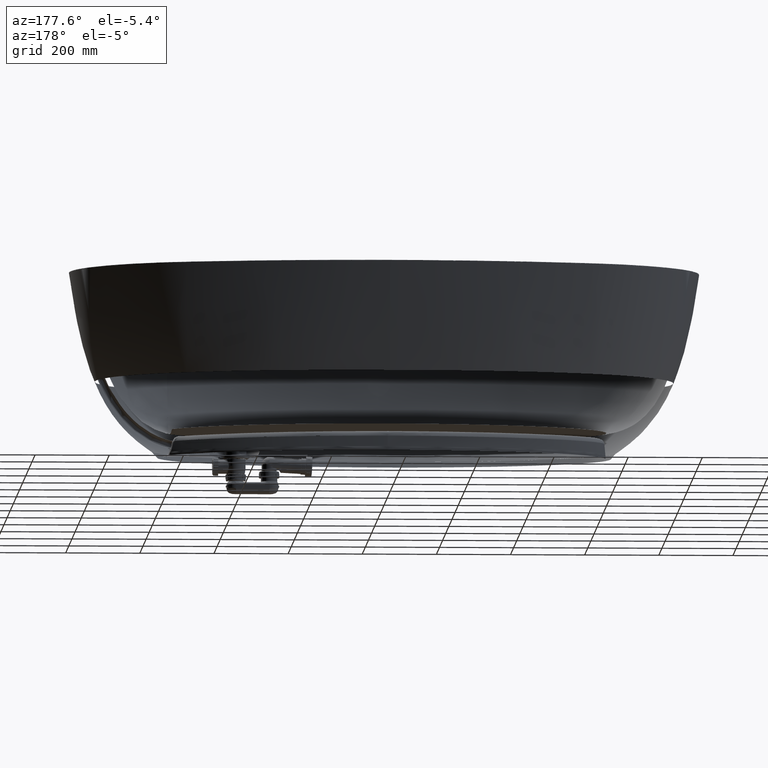
[diagram: clean part render]
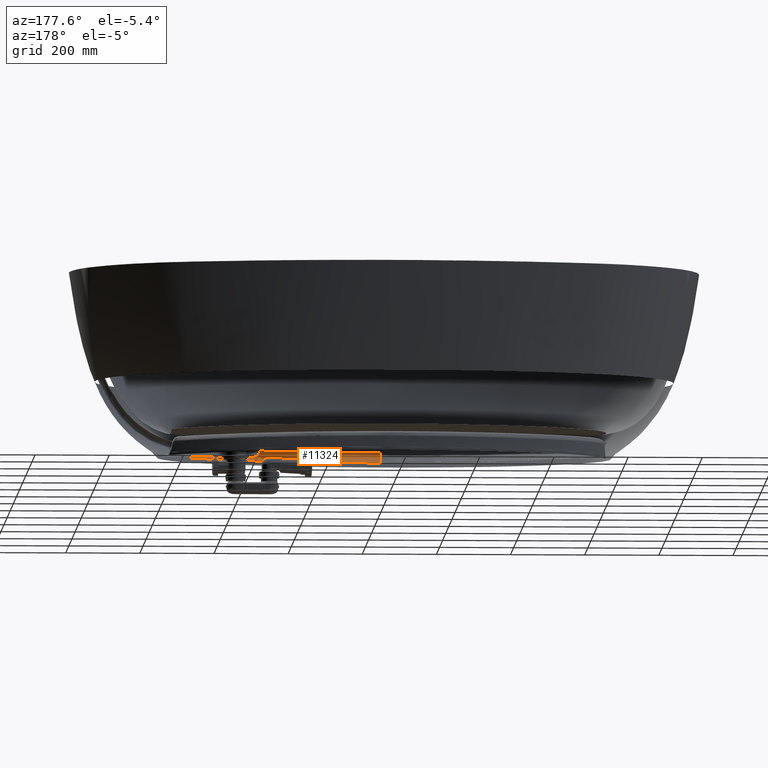
[diagram: same view with one face highlighted and labeled with its STEP entity id]
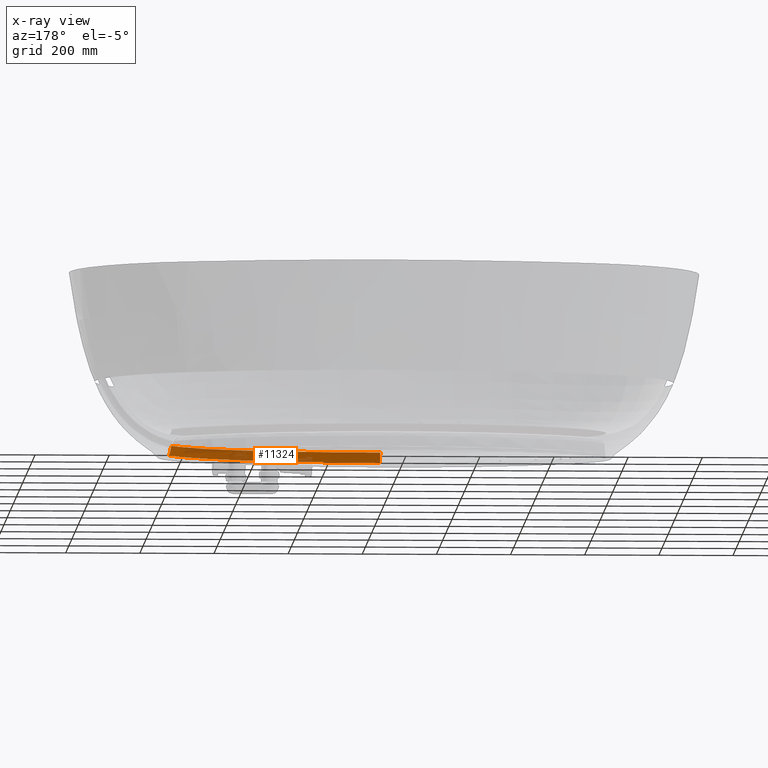
[diagram: x-ray of the same camera — body ghosted, the highlighted face saturated]
A machine part, auxiliary view. The second image highlights one B-rep face of the part: STEP entity #11324.
The next image is the same camera in x-ray: the body ghosted, the highlighted face saturated — about 24% of this face is hidden behind the body in this view.
In plain terms, the highlighted face is a freeform B-spline surface patch.
Its self-contained STEP definition (entity closure, byte-faithful):
#6777=(
BOUNDED_CURVE()
B_SPLINE_CURVE(3,(#440253,#440254,#440255,#440256),.UNSPECIFIED.,.F.,.F.)
B_SPLINE_CURVE_WITH_KNOTS((4,4),(-0.0108525835235921,0.),.UNSPECIFIED.)
CURVE()
GEOMETRIC_REPRESENTATION_ITEM()
RATIONAL_B_SPLINE_CURVE((1.,1.,1.,1.))
REPRESENTATION_ITEM('')
);
#6796=(
BOUNDED_CURVE()
B_SPLINE_CURVE(3,(#440383,#440384,#440385,#440386),.UNSPECIFIED.,.F.,.F.)
B_SPLINE_CURVE_WITH_KNOTS((4,4),(-0.0133075131186657,1.38777878078145E-17),
 .UNSPECIFIED.)
CURVE()
GEOMETRIC_REPRESENTATION_ITEM()
RATIONAL_B_SPLINE_CURVE((1.,1.,1.,1.))
REPRESENTATION_ITEM('')
);
#11324=ADVANCED_FACE('',(#12698),#34474,.T.);
#12698=FACE_OUTER_BOUND('',#14186,.T.);
#14186=EDGE_LOOP('',(#20948,#20949,#20950,#20951,#20952,#20953));
#20948=ORIENTED_EDGE('',*,*,#26090,.F.);
#20949=ORIENTED_EDGE('',*,*,#26089,.F.);
#20950=ORIENTED_EDGE('',*,*,#26088,.F.);
#20951=ORIENTED_EDGE('',*,*,#25975,.F.);
#20952=ORIENTED_EDGE('',*,*,#26017,.T.);
#20953=ORIENTED_EDGE('',*,*,#25996,.T.);
#25975=EDGE_CURVE('',#33835,#33904,#29557,.T.);
#25996=EDGE_CURVE('',#33849,#33846,#6777,.T.);
#26017=EDGE_CURVE('',#33835,#33849,#6796,.T.);
#26088=EDGE_CURVE('',#33904,#33852,#29615,.T.);
#26089=EDGE_CURVE('',#33852,#33850,#29616,.T.);
#26090=EDGE_CURVE('',#33850,#33846,#29617,.T.);
#29557=B_SPLINE_CURVE_WITH_KNOTS('',3,(#439682,#439683,#439684,#439685,
#439686,#439687,#439688,#439689,#439690,#439691,#439692,#439693,#439694,
#439695,#439696,#439697,#439698,#439699,#439700,#439701,#439702,#439703,
#439704,#439705,#439706,#439707,#439708,#439709,#439710,#439711,#439712,
#439713,#439714,#439715,#439716,#439717,#439718,#439719,#439720,#439721,
#439722,#439723,#439724,#439725,#439726,#439727,#439728,#439729),
 .UNSPECIFIED.,.F.,.F.,(4,2,2,2,2,2,2,2,2,2,2,2,2,2,2,2,2,2,2,2,2,2,2,4),
(0.,10.3124667761999,20.6249335523997,41.2498671047995,61.8748006571992,
72.1872674333991,82.499734209599,103.124667761999,123.749601314398,164.999468419198,
206.249335523997,226.874269076397,247.499202628797,288.749069733596,309.374003285996,
329.998936838396,371.248803943195,412.498671047995,453.748538152794,494.998405257594,
536.248272362393,577.498139467193,618.748006571992,627.389774157445),
 .UNSPECIFIED.);
#29615=B_SPLINE_CURVE_WITH_KNOTS('',1,(#441026,#441027),.UNSPECIFIED.,.F.,
 .F.,(2,2),(1.,2.),.UNSPECIFIED.);
#29616=B_SPLINE_CURVE_WITH_KNOTS('',3,(#441028,#441029,#441030,#441031,
#441032,#441033,#441034,#441035,#441036,#441037,#441038,#441039,#441040,
#441041,#441042,#441043,#441044,#441045,#441046,#441047,#441048,#441049,
#441050,#441051),.UNSPECIFIED.,.F.,.F.,(4,2,2,2,2,2,2,2,2,2,2,4),(4.,4.0625,
4.125,4.25000000000001,4.37500000000001,4.50000000000001,4.62500000000001,
4.75000000000002,4.87500000000002,4.90625000000002,4.93750000000002,5.00000000000002),
 .UNSPECIFIED.);
#29617=B_SPLINE_CURVE_WITH_KNOTS('',3,(#441052,#441053,#441054,#441055,
#441056,#441057),.UNSPECIFIED.,.F.,.F.,(4,2,4),(5.00000000000002,5.50000000000001,
6.),.UNSPECIFIED.);
#33835=VERTEX_POINT('',#439566);
#33846=VERTEX_POINT('',#439577);
#33849=VERTEX_POINT('',#439580);
#33850=VERTEX_POINT('',#439581);
#33852=VERTEX_POINT('',#439583);
#33904=VERTEX_POINT('',#439635);
#34474=B_SPLINE_SURFACE_WITH_KNOTS('',3,1,((#232086,#232087),(#232088,#232089),
(#232090,#232091),(#232092,#232093),(#232094,#232095),(#232096,#232097),
(#232098,#232099),(#232100,#232101),(#232102,#232103),(#232104,#232105),
(#232106,#232107),(#232108,#232109),(#232110,#232111),(#232112,#232113),
(#232114,#232115),(#232116,#232117),(#232118,#232119),(#232120,#232121),
(#232122,#232123),(#232124,#232125),(#232126,#232127),(#232128,#232129),
(#232130,#232131),(#232132,#232133),(#232134,#232135),(#232136,#232137),
(#232138,#232139),(#232140,#232141)),.UNSPECIFIED.,.F.,.F.,.F.,(4,2,2,2,
2,2,2,2,2,2,2,2,2,4),(2,2),(0.,0.03125,0.0625,0.09375,0.125,0.1875,0.25,
0.3125,0.375,0.5,0.625,0.75,0.875,1.),(0.,1.),.UNSPECIFIED.);
#232086=CARTESIAN_POINT('',(189.783167736576,0.00027692900285317,46.658633039722));
#232087=CARTESIAN_POINT('',(197.505249320926,0.000182793151142205,-41.605163362143));
#232088=CARTESIAN_POINT('',(189.78309542309,-5.93168834356427,46.658633039722));
#232089=CARTESIAN_POINT('',(197.505170726142,-6.44704628723767,-41.605163362143));
#232090=CARTESIAN_POINT('',(189.189315025343,-11.8916616425487,46.6586330396994));
#232091=CARTESIAN_POINT('',(196.859986975718,-12.9082418025942,-41.6051633621656));
#232092=CARTESIAN_POINT('',(186.855218410511,-23.6849407348112,46.6586330397445));
#232093=CARTESIAN_POINT('',(194.334831355466,-25.6668674710699,-41.6051633621205));
#232094=CARTESIAN_POINT('',(185.110238885693,-29.5408385576551,46.6586330397449));
#232095=CARTESIAN_POINT('',(192.454862657231,-31.9642822564831,-41.6051633621201));
#232096=CARTESIAN_POINT('',(180.587672170937,-41.0468676270793,46.658633039699));
#232097=CARTESIAN_POINT('',(187.616730825505,-44.2731521987367,-41.605163362166));
#232098=CARTESIAN_POINT('',(177.806340410638,-46.7057201601046,46.658633039722));
#232099=CARTESIAN_POINT('',(184.658570238326,-50.2846014231566,-41.605163362143));
#232100=CARTESIAN_POINT('',(171.369852149262,-57.7379796785978,46.658633039722));
#232101=CARTESIAN_POINT('',(177.857436446541,-61.941870102305,-41.605163362143));
#232102=CARTESIAN_POINT('',(167.712417382236,-63.1152839910146,46.658633039722));
#232103=CARTESIAN_POINT('',(174.014464791606,-67.587686906092,-41.605163362143));
#232104=CARTESIAN_POINT('',(155.692728004057,-78.7469221967364,46.658633039722));
#232105=CARTESIAN_POINT('',(161.453393017745,-83.9233943659405,-41.605163362143));
#232106=CARTESIAN_POINT('',(146.28843336466,-88.4911827917714,46.6586330397709));
#232107=CARTESIAN_POINT('',(151.703132455059,-94.0115487367627,-41.6051633620941));
#232108=CARTESIAN_POINT('',(125.746709858829,-106.636069419346,46.658633039673));
#232109=CARTESIAN_POINT('',(130.556486504768,-112.690774615989,-41.605163362192));
#232110=CARTESIAN_POINT('',(114.62730013166,-115.023313531457,46.6586330396723));
#232111=CARTESIAN_POINT('',(119.160088860117,-121.281855227456,-41.6051633621927));
#232112=CARTESIAN_POINT('',(91.2908367563448,-130.617612188584,46.6586330397717));
#232113=CARTESIAN_POINT('',(95.3388874113468,-137.200074016146,-41.6051633620933));
#232114=CARTESIAN_POINT('',(79.0873581755777,-137.816282926728,46.6586330396718));
#232115=CARTESIAN_POINT('',(82.9140743729003,-144.527217896201,-41.6051633621932));
#232116=CARTESIAN_POINT('',(53.9535826071811,-151.200616756472,46.6586330397721));
#232117=CARTESIAN_POINT('',(57.3861149625119,-158.12146400605,-41.6051633620928));
#232118=CARTESIAN_POINT('',(41.0309711004747,-157.382382201247,46.658633039722));
#232119=CARTESIAN_POINT('',(44.2829633624861,-164.388568887332,-41.605163362143));
#232120=CARTESIAN_POINT('',(1.52784912047804,-174.625210051693,46.658633039722));
#232121=CARTESIAN_POINT('',(4.29137920015165,-181.844606956828,-41.605163362143));
#232122=CARTESIAN_POINT('',(-25.7562909413483,-184.369836428647,46.658633039722));
#232123=CARTESIAN_POINT('',(-23.2792042598875,-191.688273073445,-41.605163362143));
#232124=CARTESIAN_POINT('',(-81.3497313402791,-201.164620617013,46.658633039722));
#232125=CARTESIAN_POINT('',(-79.3604937697791,-208.630436530029,-41.605163362143));
#232126=CARTESIAN_POINT('',(-109.637517603173,-208.208774189141,46.658633039722));
#232127=CARTESIAN_POINT('',(-107.871214453846,-215.728937954313,-41.605163362143));
#232128=CARTESIAN_POINT('',(-166.794538793582,-220.040145128525,46.658633039722));
#232129=CARTESIAN_POINT('',(-165.430301272379,-227.643535546381,-41.605163362143));
#232130=CARTESIAN_POINT('',(-195.653903765909,-224.825421375265,46.658633039722));
#232131=CARTESIAN_POINT('',(-194.478674118472,-232.459633033307,-41.605163362143));
#232132=CARTESIAN_POINT('',(-253.6936319585,-232.392812853016,46.658633039722));
#232133=CARTESIAN_POINT('',(-252.872106529384,-240.073141513935,-41.605163362143));
#232134=CARTESIAN_POINT('',(-282.868201144064,-235.174205483528,46.658633039722));
#232135=CARTESIAN_POINT('',(-282.217170035431,-242.870553000743,-41.605163362143));
#232136=CARTESIAN_POINT('',(-341.363773365865,-238.869505736998,46.658633039722));
#232137=CARTESIAN_POINT('',(-341.041102017501,-246.586596497535,-41.605163362143));
#232138=CARTESIAN_POINT('',(-370.680391837357,-239.783147221003,46.658633039722));
#232139=CARTESIAN_POINT('',(-370.519973479755,-247.505228692601,-41.605163362143));
#232140=CARTESIAN_POINT('',(-399.999994903911,-239.783167734894,46.658633039722));
#232141=CARTESIAN_POINT('',(-399.999989500701,-247.505249319815,-41.605163362143));
#439566=CARTESIAN_POINT('',(177.761504843992,-61.1628365955054,-37.630600188878));
#439577=CARTESIAN_POINT('',(172.010465425165,-66.0997606822324,-14.6248751086952));
#439580=CARTESIAN_POINT('',(173.902786604166,-65.0187183067994,-25.2882644440157));
#439581=CARTESIAN_POINT('',(167.847903992764,-71.1393238642425,-10.4779880945449));
#439583=CARTESIAN_POINT('',(-399.999988530606,-244.730502406379,-9.88966101478089));
#439635=CARTESIAN_POINT('',(-399.999989384558,-247.157522828261,-37.6306313766197));
#439682=CARTESIAN_POINT('',(177.761504843992,-61.1628365955054,-37.630600188878));
#439683=CARTESIAN_POINT('',(175.90888653352,-64.0567955118373,-37.6305811837575));
#439684=CARTESIAN_POINT('',(173.971745792618,-66.8721649306546,-37.6306088697611));
#439685=CARTESIAN_POINT('',(169.914044892785,-72.4052350477589,-37.6306345897379));
#439686=CARTESIAN_POINT('',(167.798958096795,-75.113913796447,-37.6306253466731));
#439687=CARTESIAN_POINT('',(161.255838394174,-83.0449711460517,-37.6303975698436));
#439688=CARTESIAN_POINT('',(156.601353812361,-88.1035095883659,-37.6302762503918));
#439689=CARTESIAN_POINT('',(146.885493278302,-97.7737398930256,-37.6304676325032));
#439690=CARTESIAN_POINT('',(141.815768553529,-102.399922219272,-37.6304909899224));
#439691=CARTESIAN_POINT('',(133.961247727398,-109.049673644386,-37.6305235985743));
#439692=CARTESIAN_POINT('',(131.30663432496,-111.214409210614,-37.6305283633416));
#439693=CARTESIAN_POINT('',(125.915966014083,-115.461464705664,-37.6305375638532));
#439694=CARTESIAN_POINT('',(123.191920630062,-117.535445286673,-37.630540321015));
#439695=CARTESIAN_POINT('',(114.910597788804,-123.641569859869,-37.6305581251943));
#439696=CARTESIAN_POINT('',(109.25837680547,-127.545365019026,-37.6305760105));
#439697=CARTESIAN_POINT('',(97.782768178414,-135.0304594301,-37.6306036728697));
#439698=CARTESIAN_POINT('',(91.9272807407915,-138.632231793751,-37.6306002487299));
#439699=CARTESIAN_POINT('',(74.1715999124828,-148.999935316947,-37.6306042290281));
#439700=CARTESIAN_POINT('',(61.9953824737912,-155.371259558996,-37.630634907371));
#439701=CARTESIAN_POINT('',(37.2629437882647,-167.21343657632,-37.6305984462409));
#439702=CARTESIAN_POINT('',(24.6789043509119,-172.690125936368,-37.6305827620839));
#439703=CARTESIAN_POINT('',(5.57106167423803,-180.324391276495,-37.6305671408472));
#439704=CARTESIAN_POINT('',(-0.83240605527575,-182.770657029234,-37.6305648937128));
#439705=CARTESIAN_POINT('',(-13.7152084445238,-187.488456465012,-37.6305679683373));
#439706=CARTESIAN_POINT('',(-20.1867769567627,-189.757831473464,-37.6305756950272));
#439707=CARTESIAN_POINT('',(-39.6947846312795,-196.319289005862,-37.6305925821342));
#439708=CARTESIAN_POINT('',(-52.7927354843234,-200.35422073456,-37.630604435911));
#439709=CARTESIAN_POINT('',(-72.5998569537204,-205.972427141888,-37.630614244202));
#439710=CARTESIAN_POINT('',(-79.207391686424,-207.766567105645,-37.6306164851783));
#439711=CARTESIAN_POINT('',(-92.4892558557119,-211.224118389211,-37.6306162586467));
#439712=CARTESIAN_POINT('',(-99.1379299339782,-212.880654334881,-37.630615726151));
#439713=CARTESIAN_POINT('',(-119.153732013414,-217.653560356006,-37.6306189402571));
#439714=CARTESIAN_POINT('',(-132.562636616009,-220.566379973899,-37.6306235764189));
#439715=CARTESIAN_POINT('',(-159.467315014835,-225.893140829635,-37.6306295921743));
#439716=CARTESIAN_POINT('',(-172.971704215997,-228.312670428259,-37.6306252071713));
#439717=CARTESIAN_POINT('',(-200.059095881954,-232.687472036992,-37.630627400144));
#439718=CARTESIAN_POINT('',(-213.62793792632,-234.640473079641,-37.6306294080518));
#439719=CARTESIAN_POINT('',(-240.840627324626,-238.110153786112,-37.6306314009234));
#439720=CARTESIAN_POINT('',(-254.482003209703,-239.627943207545,-37.6306293668128));
#439721=CARTESIAN_POINT('',(-281.780234899979,-242.237267602839,-37.6306303541223));
#439722=CARTESIAN_POINT('',(-295.464892363467,-243.332044278736,-37.6306310601298));
#439723=CARTESIAN_POINT('',(-322.830278377558,-245.110340929342,-37.6306314198262));
#439724=CARTESIAN_POINT('',(-336.534160036838,-245.79657266443,-37.6306309002334));
#439725=CARTESIAN_POINT('',(-363.947422723363,-246.765230480753,-37.6306311232171));
#439726=CARTESIAN_POINT('',(-377.663982797469,-247.048003496935,-37.630631286432));
#439727=CARTESIAN_POINT('',(-394.25240528536,-247.148775362092,-37.6306313646052));
#439728=CARTESIAN_POINT('',(-397.126109591079,-247.157515343729,-37.6306313726143));
#439729=CARTESIAN_POINT('',(-399.999989384558,-247.157522828261,-37.6306313766197));
#440253=CARTESIAN_POINT('',(173.902786604166,-65.0187183067994,-25.2882644440157));
#440254=CARTESIAN_POINT('',(173.27652105664,-65.3794116851691,-21.7330914536427));
#440255=CARTESIAN_POINT('',(172.645770903348,-65.7397629587705,-18.1786238185356));
#440256=CARTESIAN_POINT('',(172.010465425165,-66.0997606822324,-14.6248751086952));
#440383=CARTESIAN_POINT('',(177.761504843992,-61.1628365955054,-37.630600188878));
#440384=CARTESIAN_POINT('',(176.035683183264,-63.2426040807196,-33.8324496461547));
#440385=CARTESIAN_POINT('',(174.680510728527,-64.570793391228,-29.7032347511547));
#440386=CARTESIAN_POINT('',(173.902786604166,-65.0187183067994,-25.2882644440157));
#441026=CARTESIAN_POINT('',(-399.999989384558,-247.157522828261,-37.6306313766197));
#441027=CARTESIAN_POINT('',(-399.999988530606,-244.730502406379,-9.88966101478089));
#441028=CARTESIAN_POINT('',(-399.999988530606,-244.730502406379,-9.88966101478089));
#441029=CARTESIAN_POINT('',(-387.314391193327,-244.731434891627,-9.90042392409973));
#441030=CARTESIAN_POINT('',(-374.567845323353,-244.561253132141,-9.91423740879419));
#441031=CARTESIAN_POINT('',(-349.175050048186,-243.877011833817,-9.94998110673907));
#441032=CARTESIAN_POINT('',(-336.491787602843,-243.363001845231,-9.97247250960076));
#441033=CARTESIAN_POINT('',(-298.481768013993,-241.300388016688,-10.0477372439168));
#441034=CARTESIAN_POINT('',(-273.194453663851,-239.235427336181,-10.1072955972408));
#441035=CARTESIAN_POINT('',(-222.732715644581,-233.627554198633,-10.2434537120017));
#441036=CARTESIAN_POINT('',(-197.507193169509,-230.081351442192,-10.3197400964533));
#441037=CARTESIAN_POINT('',(-147.442841802329,-221.375703340927,-10.4914184681696));
#441038=CARTESIAN_POINT('',(-122.637179320372,-216.232087167355,-10.5827640540381));
#441039=CARTESIAN_POINT('',(-73.5511265590203,-204.111356376491,-10.7983689034131));
#441040=CARTESIAN_POINT('',(-49.2688061935653,-197.140998625999,-10.9238048862123));
#441041=CARTESIAN_POINT('',(-1.36017329603066,-180.910069004478,-11.191230904882));
#441042=CARTESIAN_POINT('',(22.2892998466808,-171.632087276583,-11.3369799640169));
#441043=CARTESIAN_POINT('',(68.5523958783084,-149.858629158882,-11.4011848165146));
#441044=CARTESIAN_POINT('',(90.8075632613268,-137.553695110692,-11.2926688763055));
#441045=CARTESIAN_POINT('',(116.88639137374,-119.354955878856,-11.0663070664716));
#441046=CARTESIAN_POINT('',(122.01221524064,-115.569569752045,-11.0171824445873));
#441047=CARTESIAN_POINT('',(132.050486159719,-107.65322857588,-10.9166598391431));
#441048=CARTESIAN_POINT('',(136.974745694014,-103.510893030142,-10.8645351621652));
#441049=CARTESIAN_POINT('',(151.209081679919,-90.6080439343696,-10.703114806235));
#441050=CARTESIAN_POINT('',(160.02944130389,-81.3585385595915,-10.5893591728601));
#441051=CARTESIAN_POINT('',(167.847903992764,-71.1393238642425,-10.4779880945449));
#441052=CARTESIAN_POINT('',(167.847903992764,-71.1393238642425,-10.4779880945449));
#441053=CARTESIAN_POINT('',(168.699759613329,-70.0258958448702,-10.4658537190038));
#441054=CARTESIAN_POINT('',(169.564848524263,-68.9098661626725,-10.7658247436793));
#441055=CARTESIAN_POINT('',(171.092501818674,-67.0182994644114,-12.1252954363333));
#441056=CARTESIAN_POINT('',(171.763328960375,-66.2398012890622,-13.2424521276151));
#441057=CARTESIAN_POINT('',(172.010465425165,-66.0997606822324,-14.6248751086952));